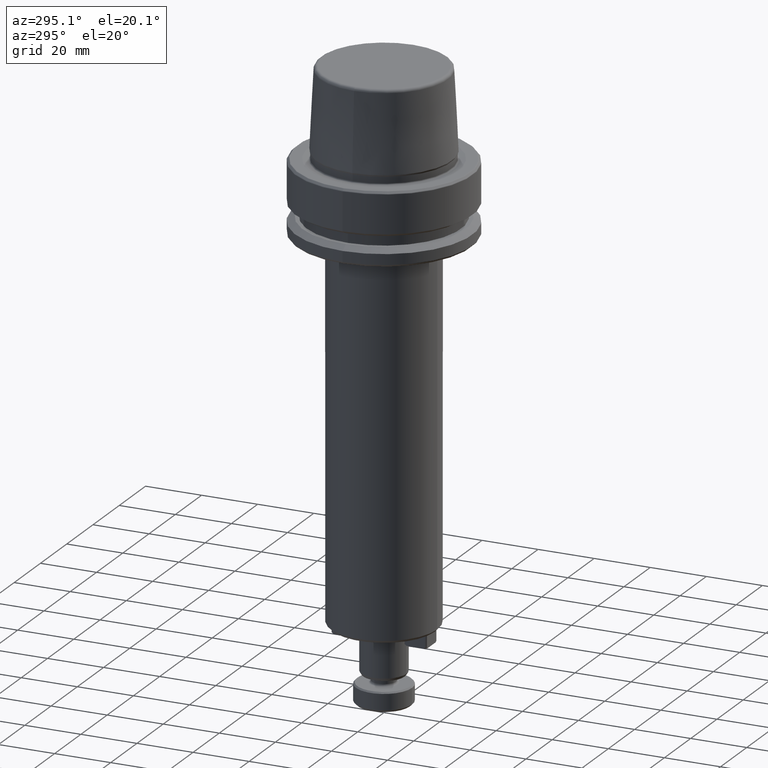
[diagram: clean part render]
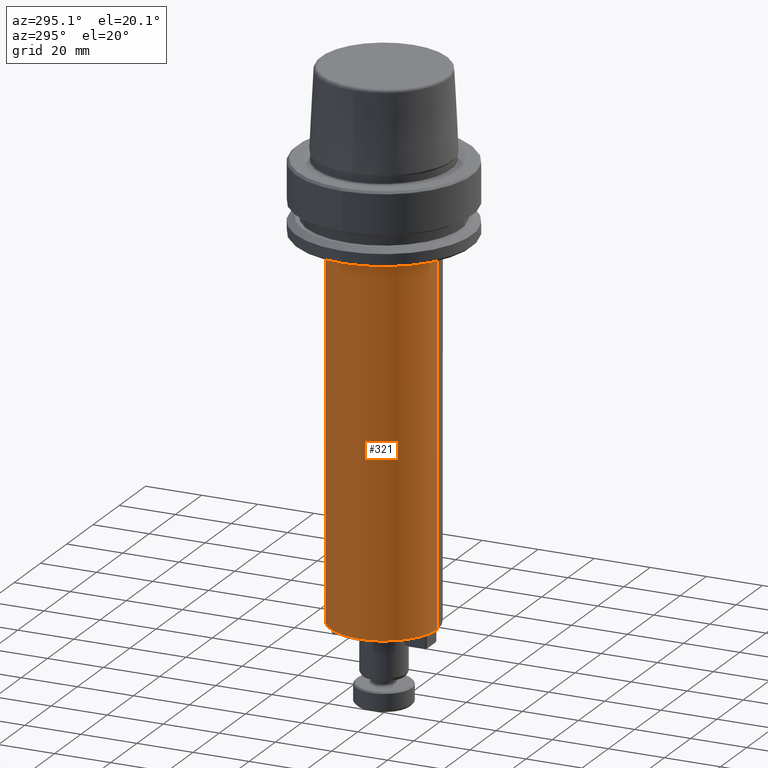
[diagram: same view with one face highlighted and labeled with its STEP entity id]
A machine part, auxiliary view. The second image highlights one B-rep face of the part: STEP entity #321.
In plain terms, the highlighted cylindrical surface (partial cylindrical patch) has radius 19 mm, axis along (-0, 0, -1).
Its self-contained STEP definition (entity closure, byte-faithful):
#12 = VERTEX_POINT ( 'NONE', #2089 ) ;
#48 = CARTESIAN_POINT ( 'NONE',  ( 0.0000000000000000000, 19.00000000000000700, -159.0000000000000000 ) ) ;
#132 = VERTEX_POINT ( 'NONE', #1837 ) ;
#171 = CARTESIAN_POINT ( 'NONE',  ( 0.0000000000000000000, 3.892916977421933200E-017, -26.79999999999999000 ) ) ;
#321 = ADVANCED_FACE ( 'NONE', ( #2425 ), #701, .T. ) ;
#408 = CARTESIAN_POINT ( 'NONE',  ( 0.0000000000000000000, 19.00000000000000700, -177.0000000000000000 ) ) ;
#468 = LINE ( 'NONE', #1495, #1036 ) ;
#492 = DIRECTION ( 'NONE',  ( 0.0000000000000000000, 0.0000000000000000000, -1.000000000000000000 ) ) ;
#688 = VERTEX_POINT ( 'NONE', #1190 ) ;
#701 = CYLINDRICAL_SURFACE ( 'NONE', #780, 19.00000000000000000 ) ;
#714 = EDGE_CURVE ( 'NONE', #132, #688, #1091, .T. ) ;
#726 = DIRECTION ( 'NONE',  ( -0.0000000000000000000, 4.866146221777561900E-017, -1.000000000000000000 ) ) ;
#728 = ORIENTED_EDGE ( 'NONE', *, *, #2757, .T. ) ;
#744 = LINE ( 'NONE', #408, #811 ) ;
#774 = CARTESIAN_POINT ( 'NONE',  ( 0.0000000000000000000, 3.892916977421933200E-017, -26.79999999999999000 ) ) ;
#780 = AXIS2_PLACEMENT_3D ( 'NONE', #1335, #726, #2671 ) ;
#782 = ORIENTED_EDGE ( 'NONE', *, *, #2183, .F. ) ;
#811 = VECTOR ( 'NONE', #1944, 1000.000000000000000 ) ;
#895 = AXIS2_PLACEMENT_3D ( 'NONE', #2470, #1162, #2670 ) ;
#982 = DIRECTION ( 'NONE',  ( 1.000000000000000000, 0.0000000000000000000, 0.0000000000000000000 ) ) ;
#1036 = VECTOR ( 'NONE', #2773, 1000.000000000000000 ) ;
#1091 = CIRCLE ( 'NONE', #2794, 19.00000000000000000 ) ;
#1162 = DIRECTION ( 'NONE',  ( -0.0000000000000000000, 4.866146221777561900E-017, -1.000000000000000000 ) ) ;
#1190 = CARTESIAN_POINT ( 'NONE',  ( 0.0000000000000000000, 19.00000000000000000, -26.79999999999999000 ) ) ;
#1274 = CIRCLE ( 'NONE', #895, 19.00000000000000000 ) ;
#1335 = CARTESIAN_POINT ( 'NONE',  ( 0.0000000000000000000, 7.347880794884116800E-015, -177.0000000000000000 ) ) ;
#1365 = VERTEX_POINT ( 'NONE', #48 ) ;
#1390 = DIRECTION ( 'NONE',  ( 1.000000000000000000, 0.0000000000000000000, 0.0000000000000000000 ) ) ;
#1421 = CARTESIAN_POINT ( 'NONE',  ( 2.326828918379971000E-015, -18.99999999999999300, -159.0000000000000000 ) ) ;
#1438 = EDGE_LOOP ( 'NONE', ( #1598, #728, #1960, #2734, #782 ) ) ;
#1450 = VERTEX_POINT ( 'NONE', #1421 ) ;
#1495 = CARTESIAN_POINT ( 'NONE',  ( 2.326828918379971000E-015, -18.99999999999999300, -177.0000000000000000 ) ) ;
#1598 = ORIENTED_EDGE ( 'NONE', *, *, #2436, .F. ) ;
#1837 = CARTESIAN_POINT ( 'NONE',  ( -19.00000000000000000, 2.414743960120084700E-015, -26.79999999999999000 ) ) ;
#1881 = EDGE_CURVE ( 'NONE', #688, #1365, #744, .T. ) ;
#1944 = DIRECTION ( 'NONE',  ( -0.0000000000000000000, 4.866146221777561900E-017, -1.000000000000000000 ) ) ;
#1960 = ORIENTED_EDGE ( 'NONE', *, *, #714, .T. ) ;
#2089 = CARTESIAN_POINT ( 'NONE',  ( 2.326828918379971400E-015, -19.00000000000000000, -26.79999999999999000 ) ) ;
#2183 = EDGE_CURVE ( 'NONE', #1450, #1365, #1274, .T. ) ;
#2312 = DIRECTION ( 'NONE',  ( 0.0000000000000000000, 0.0000000000000000000, -1.000000000000000000 ) ) ;
#2425 = FACE_OUTER_BOUND ( 'NONE', #1438, .T. ) ;
#2436 = EDGE_CURVE ( 'NONE', #12, #1450, #468, .T. ) ;
#2470 = CARTESIAN_POINT ( 'NONE',  ( 0.0000000000000000000, 6.471974474964156600E-015, -159.0000000000000000 ) ) ;
#2670 = DIRECTION ( 'NONE',  ( 0.0000000000000000000, 1.000000000000000000, 0.0000000000000000000 ) ) ;
#2671 = DIRECTION ( 'NONE',  ( 0.0000000000000000000, 1.000000000000000000, 0.0000000000000000000 ) ) ;
#2696 = CIRCLE ( 'NONE', #2795, 19.00000000000000000 ) ;
#2734 = ORIENTED_EDGE ( 'NONE', *, *, #1881, .T. ) ;
#2757 = EDGE_CURVE ( 'NONE', #12, #132, #2696, .T. ) ;
#2773 = DIRECTION ( 'NONE',  ( -0.0000000000000000000, 4.866146221777561900E-017, -1.000000000000000000 ) ) ;
#2794 = AXIS2_PLACEMENT_3D ( 'NONE', #171, #492, #1390 ) ;
#2795 = AXIS2_PLACEMENT_3D ( 'NONE', #774, #2312, #982 ) ;